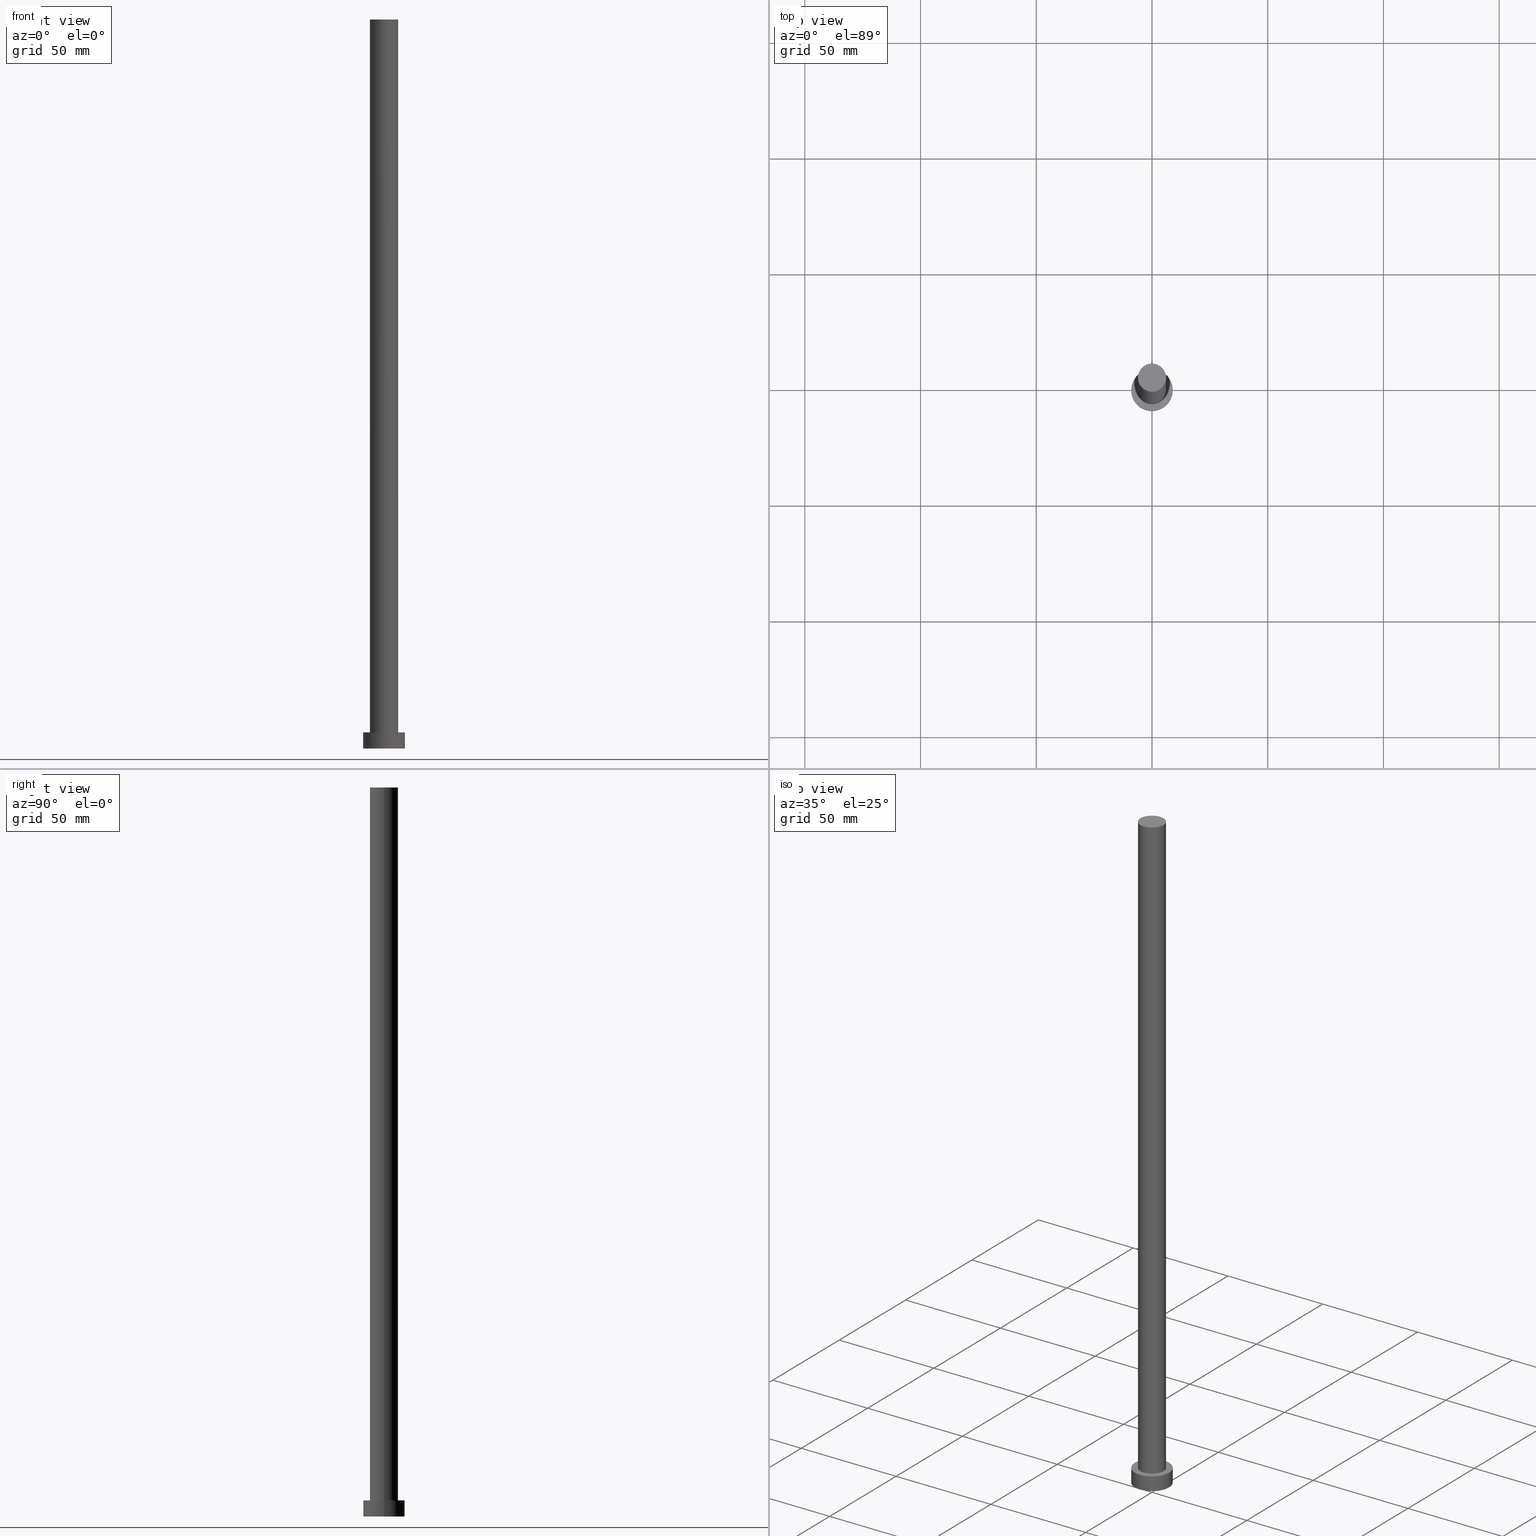
[diagram: canonical four-view strip — front | top / right | iso, engineering-drawing reading convention]
A machine part, canonical four-view strip (front | top / right | iso — engineering-drawing reading convention). The complete STEP part file that produces these views, byte-faithful:
ISO-10303-21;
HEADER;
FILE_DESCRIPTION (( 'STEP AP203' ),
    '1' );
FILE_NAME ('68d6.STEP',
    '2023-02-12T11:02:56',
    ( '' ),
    ( '' ),
    'SwSTEP 2.0',
    'SolidWorks 2019',
    '' );
FILE_SCHEMA (( 'CONFIG_CONTROL_DESIGN' ));
ENDSEC;

DATA;
#1 = AXIS2_PLACEMENT_3D ( 'NONE', #61, #118, #231 ) ;
#2 =( NAMED_UNIT ( * ) PLANE_ANGLE_UNIT ( ) SI_UNIT ( $, .RADIAN. ) );
#3 = APPROVAL_PERSON_ORGANIZATION ( #191, #161, #42 ) ;
#4 = COORDINATED_UNIVERSAL_TIME_OFFSET ( 1, 0, .AHEAD. ) ;
#5 = CARTESIAN_POINT ( 'NONE',  ( 0.000000000000000000, 0.000000000000000000, 315.0000000000000000 ) ) ;
#6 = EDGE_CURVE ( 'NONE', #242, #131, #48, .T. ) ;
#7 = ORGANIZATION ( 'NEUR�EN�', 'NEUR�EN�', '' ) ;
#8 = VERTEX_POINT ( 'NONE', #78 ) ;
#9 = VECTOR ( 'NONE', #104, 1000.000000000000000 ) ;
#10 = EDGE_CURVE ( 'NONE', #8, #110, #115, .T. ) ;
#11 = APPROVAL_ROLE ( '' ) ;
#12 = DIRECTION ( 'NONE',  ( -1.000000000000000000, 0.000000000000000000, 0.000000000000000000 ) ) ;
#13 = ORIENTED_EDGE ( 'NONE', *, *, #85, .T. ) ;
#14 = AXIS2_PLACEMENT_3D ( 'NONE', #16, #65, #80 ) ;
#15 = PERSON_AND_ORGANIZATION ( #126, #7 ) ;
#16 = CARTESIAN_POINT ( 'NONE',  ( 0.000000000000000000, 0.000000000000000000, 0.000000000000000000 ) ) ;
#17 = ORIENTED_EDGE ( 'NONE', *, *, #99, .T. ) ;
#18 = DIRECTION ( 'NONE',  ( -1.000000000000000000, 0.000000000000000000, 0.000000000000000000 ) ) ;
#19 = DIRECTION ( 'NONE',  ( 1.000000000000000000, 0.000000000000000000, 0.000000000000000000 ) ) ;
#20 = CC_DESIGN_DATE_AND_TIME_ASSIGNMENT ( #209, #114, ( #188 ) ) ;
#21 = ORIENTED_EDGE ( 'NONE', *, *, #128, .F. ) ;
#22 = CIRCLE ( 'NONE', #137, 6.099999999999999645 ) ;
#23 = CC_DESIGN_APPROVAL ( #218, ( #188 ) ) ;
#24 = ORIENTED_EDGE ( 'NONE', *, *, #128, .T. ) ;
#25 = CIRCLE ( 'NONE', #204, 6.099999999999999645 ) ;
#26 = CALENDAR_DATE ( 2023, 12, 2 ) ;
#27 = EDGE_CURVE ( 'NONE', #201, #110, #73, .T. ) ;
#28 = CIRCLE ( 'NONE', #182, 9.000000000000000000 ) ;
#29 = DIRECTION ( 'NONE',  ( -0.000000000000000000, -0.000000000000000000, -1.000000000000000000 ) ) ;
#30 = DIRECTION ( 'NONE',  ( -1.000000000000000000, 0.000000000000000000, 0.000000000000000000 ) ) ;
#31 = DIRECTION ( 'NONE',  ( 1.000000000000000000, 0.000000000000000000, 0.000000000000000000 ) ) ;
#32 = DIRECTION ( 'NONE',  ( -0.000000000000000000, -0.000000000000000000, -1.000000000000000000 ) ) ;
#33 = DIRECTION ( 'NONE',  ( 0.000000000000000000, 0.000000000000000000, 1.000000000000000000 ) ) ;
#34 = DIRECTION ( 'NONE',  ( -0.000000000000000000, -0.000000000000000000, -1.000000000000000000 ) ) ;
#35 = ORIENTED_EDGE ( 'NONE', *, *, #62, .F. ) ;
#36 = CYLINDRICAL_SURFACE ( 'NONE', #212, 9.000000000000000000 ) ;
#37 = FACE_OUTER_BOUND ( 'NONE', #53, .T. ) ;
#38 = EDGE_LOOP ( 'NONE', ( #190, #21, #123, #145 ) ) ;
#39 = CARTESIAN_POINT ( 'NONE',  ( 0.000000000000000000, 0.000000000000000000, 7.000000000000000000 ) ) ;
#40 = CARTESIAN_POINT ( 'NONE',  ( 0.000000000000000000, 0.000000000000000000, 7.000000000000000000 ) ) ;
#41 = DIRECTION ( 'NONE',  ( 1.000000000000000000, 0.000000000000000000, -0.000000000000000000 ) ) ;
#42 = APPROVAL_ROLE ( '' ) ;
#43 = APPROVAL ( #147, 'NEUR�EN�' ) ;
#44 = PERSON_AND_ORGANIZATION ( #126, #7 ) ;
#45 = PERSON_AND_ORGANIZATION_ROLE ( 'design_owner' ) ;
#46 = ADVANCED_BREP_SHAPE_REPRESENTATION ( '68d6', ( #120, #14 ), #240 ) ;
#47 = PRODUCT_RELATED_PRODUCT_CATEGORY ( 'detail', '', ( #175 ) ) ;
#48 = LINE ( 'NONE', #103, #234 ) ;
#49 = CARTESIAN_POINT ( 'NONE',  ( 0.000000000000000000, 0.000000000000000000, 315.0000000000000000 ) ) ;
#50 = DIRECTION ( 'NONE',  ( -1.000000000000000000, 0.000000000000000000, 0.000000000000000000 ) ) ;
#51 = CARTESIAN_POINT ( 'NONE',  ( 9.000000000000000000, 1.102182119232617714E-15, 0.000000000000000000 ) ) ;
#52 = DATE_AND_TIME ( #203, #192 ) ;
#53 = EDGE_LOOP ( 'NONE', ( #24, #67 ) ) ;
#54 = PLANE ( 'NONE',  #94 ) ;
#55 = EDGE_CURVE ( 'NONE', #74, #201, #22, .T. ) ;
#56 = VERTEX_POINT ( 'NONE', #156 ) ;
#57 = COORDINATED_UNIVERSAL_TIME_OFFSET ( 1, 0, .AHEAD. ) ;
#58 = APPROVAL_DATE_TIME ( #196, #161 ) ;
#59 = ADVANCED_FACE ( 'NONE', ( #168 ), #36, .T. ) ;
#60 = DIRECTION ( 'NONE',  ( 0.000000000000000000, 0.000000000000000000, 1.000000000000000000 ) ) ;
#61 = CARTESIAN_POINT ( 'NONE',  ( 0.000000000000000000, 0.000000000000000000, 7.000000000000000000 ) ) ;
#62 = EDGE_CURVE ( 'NONE', #242, #56, #146, .T. ) ;
#63 = EDGE_LOOP ( 'NONE', ( #90, #254 ) ) ;
#64 = FACE_OUTER_BOUND ( 'NONE', #166, .T. ) ;
#65 = DIRECTION ( 'NONE',  ( 0.000000000000000000, 0.000000000000000000, 1.000000000000000000 ) ) ;
#66 = DIRECTION ( 'NONE',  ( -0.000000000000000000, -0.000000000000000000, -1.000000000000000000 ) ) ;
#67 = ORIENTED_EDGE ( 'NONE', *, *, #55, .T. ) ;
#68 = SHAPE_DEFINITION_REPRESENTATION ( #121, #46 ) ;
#69 = APPLICATION_CONTEXT ( 'configuration controlled 3d designs of mechanical parts and assemblies' ) ;
#70 = FACE_OUTER_BOUND ( 'NONE', #63, .T. ) ;
#71 = ORIENTED_EDGE ( 'NONE', *, *, #193, .T. ) ;
#72 = AXIS2_PLACEMENT_3D ( 'NONE', #86, #109, #249 ) ;
#73 = LINE ( 'NONE', #134, #172 ) ;
#74 = VERTEX_POINT ( 'NONE', #113 ) ;
#75 = PERSON_AND_ORGANIZATION ( #126, #7 ) ;
#76 = AXIS2_PLACEMENT_3D ( 'NONE', #244, #32, #30 ) ;
#77 = CC_DESIGN_SECURITY_CLASSIFICATION ( #97, ( #150 ) ) ;
#78 = CARTESIAN_POINT ( 'NONE',  ( 6.099999999999999645, 7.470345474798854293E-16, 7.000000000000000000 ) ) ;
#79 = CC_DESIGN_PERSON_AND_ORGANIZATION_ASSIGNMENT ( #44, #92, ( #150 ) ) ;
#80 = DIRECTION ( 'NONE',  ( 1.000000000000000000, 0.000000000000000000, 0.000000000000000000 ) ) ;
#81 = AXIS2_PLACEMENT_3D ( 'NONE', #87, #60, #142 ) ;
#82 = COORDINATED_UNIVERSAL_TIME_OFFSET ( 1, 0, .AHEAD. ) ;
#83 = DIRECTION ( 'NONE',  ( 0.000000000000000000, 0.000000000000000000, 1.000000000000000000 ) ) ;
#84 = ORIENTED_EDGE ( 'NONE', *, *, #27, .F. ) ;
#85 = EDGE_CURVE ( 'NONE', #131, #155, #28, .T. ) ;
#86 = CARTESIAN_POINT ( 'NONE',  ( 0.000000000000000000, 0.000000000000000000, 315.0000000000000000 ) ) ;
#87 = CARTESIAN_POINT ( 'NONE',  ( 0.000000000000000000, 0.000000000000000000, 7.000000000000000000 ) ) ;
#88 = DIRECTION ( 'NONE',  ( 0.000000000000000000, 0.000000000000000000, 1.000000000000000000 ) ) ;
#89 = DIRECTION ( 'NONE',  ( 0.000000000000000000, 0.000000000000000000, 1.000000000000000000 ) ) ;
#90 = ORIENTED_EDGE ( 'NONE', *, *, #239, .F. ) ;
#91 = APPLICATION_PROTOCOL_DEFINITION ( 'international standard', 'config_control_design', 1994, #93 ) ;
#92 = PERSON_AND_ORGANIZATION_ROLE ( 'creator' ) ;
#93 = APPLICATION_CONTEXT ( 'configuration controlled 3d designs of mechanical parts and assemblies' ) ;
#94 = AXIS2_PLACEMENT_3D ( 'NONE', #108, #154, #207 ) ;
#95 = CARTESIAN_POINT ( 'NONE',  ( -6.099999999999999645, 0.000000000000000000, 7.000000000000000000 ) ) ;
#96 = CC_DESIGN_APPROVAL ( #161, ( #150 ) ) ;
#97 = SECURITY_CLASSIFICATION ( '', '', #143 ) ;
#98 = COORDINATED_UNIVERSAL_TIME_OFFSET ( 1, 0, .AHEAD. ) ;
#99 = EDGE_CURVE ( 'NONE', #56, #242, #164, .T. ) ;
#100 = DIRECTION ( 'NONE',  ( 0.000000000000000000, 0.000000000000000000, 1.000000000000000000 ) ) ;
#101 = ADVANCED_FACE ( 'NONE', ( #173, #232 ), #138, .T. ) ;
#102 = ORIENTED_EDGE ( 'NONE', *, *, #185, .F. ) ;
#103 = CARTESIAN_POINT ( 'NONE',  ( 9.000000000000000000, 1.102182119232617714E-15, 7.000000000000000000 ) ) ;
#104 = DIRECTION ( 'NONE',  ( -0.000000000000000000, -0.000000000000000000, -1.000000000000000000 ) ) ;
#105 = CIRCLE ( 'NONE', #200, 6.099999999999999645 ) ;
#106 = COORDINATED_UNIVERSAL_TIME_OFFSET ( 1, 0, .AHEAD. ) ;
#107 = DATE_TIME_ROLE ( 'classification_date' ) ;
#108 = CARTESIAN_POINT ( 'NONE',  ( 0.000000000000000000, 0.000000000000000000, 0.000000000000000000 ) ) ;
#109 = DIRECTION ( 'NONE',  ( 0.000000000000000000, 0.000000000000000000, 1.000000000000000000 ) ) ;
#110 = VERTEX_POINT ( 'NONE', #95 ) ;
#111 = ORIENTED_EDGE ( 'NONE', *, *, #185, .T. ) ;
#112 = CARTESIAN_POINT ( 'NONE',  ( 0.000000000000000000, 0.000000000000000000, 0.000000000000000000 ) ) ;
#113 = CARTESIAN_POINT ( 'NONE',  ( 6.099999999999999645, 7.470345474798854293E-16, 315.0000000000000000 ) ) ;
#114 = DATE_TIME_ROLE ( 'creation_date' ) ;
#115 = CIRCLE ( 'NONE', #1, 6.099999999999999645 ) ;
#116 = VECTOR ( 'NONE', #34, 1000.000000000000000 ) ;
#117 = CALENDAR_DATE ( 2023, 12, 2 ) ;
#118 = DIRECTION ( 'NONE',  ( 0.000000000000000000, 0.000000000000000000, 1.000000000000000000 ) ) ;
#119 = DATE_AND_TIME ( #26, #125 ) ;
#120 = MANIFOLD_SOLID_BREP ( 'P�idat vysunut�m3', #214 ) ;
#121 = PRODUCT_DEFINITION_SHAPE ( 'NONE', 'NONE',  #188 ) ;
#122 = AXIS2_PLACEMENT_3D ( 'NONE', #49, #184, #50 ) ;
#123 = ORIENTED_EDGE ( 'NONE', *, *, #27, .T. ) ;
#124 = DATE_AND_TIME ( #132, #202 ) ;
#125 = LOCAL_TIME ( 12, 2, 56.00000000000000000, #4 ) ;
#126 = PERSON ( 'NEUR�EN�', 'NEUR�EN�', 'NEUR�EN�', ('NEUR�EN�'), ('NEUR�EN�'), ('NEUR�EN�') ) ;
#127 = LINE ( 'NONE', #252, #116 ) ;
#128 = EDGE_CURVE ( 'NONE', #201, #74, #25, .T. ) ;
#129 = PERSON_AND_ORGANIZATION ( #126, #7 ) ;
#130 = AXIS2_PLACEMENT_3D ( 'NONE', #40, #88, #237 ) ;
#131 = VERTEX_POINT ( 'NONE', #51 ) ;
#132 = CALENDAR_DATE ( 2023, 12, 2 ) ;
#133 = CC_DESIGN_PERSON_AND_ORGANIZATION_ASSIGNMENT ( #129, #225, ( #97 ) ) ;
#134 = CARTESIAN_POINT ( 'NONE',  ( -6.099999999999999645, 0.000000000000000000, 315.0000000000000000 ) ) ;
#135 = ORIENTED_EDGE ( 'NONE', *, *, #10, .F. ) ;
#136 = DIRECTION ( 'NONE',  ( -0.000000000000000000, -0.000000000000000000, -1.000000000000000000 ) ) ;
#137 = AXIS2_PLACEMENT_3D ( 'NONE', #213, #33, #251 ) ;
#138 = PLANE ( 'NONE',  #179 ) ;
#139 = CALENDAR_DATE ( 2023, 12, 2 ) ;
#140 = DIRECTION ( 'NONE',  ( -0.000000000000000000, -0.000000000000000000, -1.000000000000000000 ) ) ;
#141 = PERSON_AND_ORGANIZATION ( #126, #7 ) ;
#142 = DIRECTION ( 'NONE',  ( 1.000000000000000000, 0.000000000000000000, 0.000000000000000000 ) ) ;
#143 = SECURITY_CLASSIFICATION_LEVEL ( 'unclassified' ) ;
#144 = ADVANCED_FACE ( 'NONE', ( #221 ), #183, .T. ) ;
#145 = ORIENTED_EDGE ( 'NONE', *, *, #241, .T. ) ;
#146 = CIRCLE ( 'NONE', #81, 9.000000000000000000 ) ;
#147 = APPROVAL_STATUS ( 'not_yet_approved' ) ;
#148 = CYLINDRICAL_SURFACE ( 'NONE', #76, 9.000000000000000000 ) ;
#149 = DIRECTION ( 'NONE',  ( 1.000000000000000000, 0.000000000000000000, 0.000000000000000000 ) ) ;
#150 = PRODUCT_DEFINITION_FORMATION_WITH_SPECIFIED_SOURCE ( 'LIBOVOLN�', '', #175, .NOT_KNOWN. ) ;
#151 = PLANE ( 'NONE',  #72 ) ;
#152 = ORIENTED_EDGE ( 'NONE', *, *, #62, .T. ) ;
#153 = APPROVAL_DATE_TIME ( #119, #218 ) ;
#154 = DIRECTION ( 'NONE',  ( 0.000000000000000000, 0.000000000000000000, 1.000000000000000000 ) ) ;
#155 = VERTEX_POINT ( 'NONE', #162 ) ;
#156 = CARTESIAN_POINT ( 'NONE',  ( -9.000000000000000000, 0.000000000000000000, 7.000000000000000000 ) ) ;
#157 = PERSON_AND_ORGANIZATION ( #126, #7 ) ;
#158 = CARTESIAN_POINT ( 'NONE',  ( 0.000000000000000000, 0.000000000000000000, 0.000000000000000000 ) ) ;
#159 = PERSON_AND_ORGANIZATION ( #126, #7 ) ;
#160 =( LENGTH_UNIT ( ) NAMED_UNIT ( * ) SI_UNIT ( .MILLI., .METRE. ) );
#161 = APPROVAL ( #233, 'NEUR�EN�' ) ;
#162 = CARTESIAN_POINT ( 'NONE',  ( -9.000000000000000000, 0.000000000000000000, 0.000000000000000000 ) ) ;
#163 = ADVANCED_FACE ( 'NONE', ( #64 ), #148, .T. ) ;
#164 = CIRCLE ( 'NONE', #130, 9.000000000000000000 ) ;
#165 = AXIS2_PLACEMENT_3D ( 'NONE', #112, #247, #149 ) ;
#166 = EDGE_LOOP ( 'NONE', ( #35, #216, #13, #102 ) ) ;
#167 = APPROVAL_PERSON_ORGANIZATION ( #15, #43, #11 ) ;
#168 = FACE_OUTER_BOUND ( 'NONE', #253, .T. ) ;
#169 = CYLINDRICAL_SURFACE ( 'NONE', #224, 6.099999999999999645 ) ;
#170 = ORIENTED_EDGE ( 'NONE', *, *, #239, .T. ) ;
#171 = MECHANICAL_CONTEXT ( 'NONE', #69, 'mechanical' ) ;
#172 = VECTOR ( 'NONE', #140, 1000.000000000000000 ) ;
#173 = FACE_BOUND ( 'NONE', #227, .T. ) ;
#174 = APPROVAL_STATUS ( 'not_yet_approved' ) ;
#175 = PRODUCT ( '68d6', '68d6', '', ( #171 ) ) ;
#176 = EDGE_LOOP ( 'NONE', ( #181, #71, #199, #84 ) ) ;
#177 = DESIGN_CONTEXT ( 'detailed design', #93, 'design' ) ;
#178 = CC_DESIGN_DATE_AND_TIME_ASSIGNMENT ( #52, #107, ( #97 ) ) ;
#179 = AXIS2_PLACEMENT_3D ( 'NONE', #195, #83, #41 ) ;
#180 = CIRCLE ( 'NONE', #165, 9.000000000000000000 ) ;
#181 = ORIENTED_EDGE ( 'NONE', *, *, #55, .F. ) ;
#182 = AXIS2_PLACEMENT_3D ( 'NONE', #158, #187, #19 ) ;
#183 = CYLINDRICAL_SURFACE ( 'NONE', #122, 6.099999999999999645 ) ;
#184 = DIRECTION ( 'NONE',  ( -0.000000000000000000, -0.000000000000000000, -1.000000000000000000 ) ) ;
#185 = EDGE_CURVE ( 'NONE', #56, #155, #223, .T. ) ;
#186 = APPROVAL_PERSON_ORGANIZATION ( #157, #218, #255 ) ;
#187 = DIRECTION ( 'NONE',  ( 0.000000000000000000, 0.000000000000000000, 1.000000000000000000 ) ) ;
#188 = PRODUCT_DEFINITION ( 'NEZN�M�', '', #150, #177 ) ;
#189 = CARTESIAN_POINT ( 'NONE',  ( 0.000000000000000000, 0.000000000000000000, 7.000000000000000000 ) ) ;
#190 = ORIENTED_EDGE ( 'NONE', *, *, #193, .F. ) ;
#191 = PERSON_AND_ORGANIZATION ( #126, #7 ) ;
#192 = LOCAL_TIME ( 12, 2, 56.00000000000000000, #106 ) ;
#193 = EDGE_CURVE ( 'NONE', #74, #8, #127, .T. ) ;
#194 = ORIENTED_EDGE ( 'NONE', *, *, #99, .F. ) ;
#195 = CARTESIAN_POINT ( 'NONE',  ( 0.000000000000000000, 0.000000000000000000, 7.000000000000000000 ) ) ;
#196 = DATE_AND_TIME ( #117, #220 ) ;
#197 = PERSON_AND_ORGANIZATION_ROLE ( 'design_supplier' ) ;
#198 = ADVANCED_FACE ( 'NONE', ( #37 ), #151, .T. ) ;
#199 = ORIENTED_EDGE ( 'NONE', *, *, #10, .T. ) ;
#200 = AXIS2_PLACEMENT_3D ( 'NONE', #189, #89, #228 ) ;
#201 = VERTEX_POINT ( 'NONE', #246 ) ;
#202 = LOCAL_TIME ( 12, 2, 56.00000000000000000, #82 ) ;
#203 = CALENDAR_DATE ( 2023, 12, 2 ) ;
#204 = AXIS2_PLACEMENT_3D ( 'NONE', #5, #100, #31 ) ;
#205 = FACE_OUTER_BOUND ( 'NONE', #176, .T. ) ;
#206 = ADVANCED_FACE ( 'NONE', ( #205 ), #169, .T. ) ;
#207 = DIRECTION ( 'NONE',  ( 1.000000000000000000, 0.000000000000000000, -0.000000000000000000 ) ) ;
#208 = UNCERTAINTY_MEASURE_WITH_UNIT (LENGTH_MEASURE( 1.000000000000000082E-05 ), #160, 'distance_accuracy_value', 'NONE');
#209 = DATE_AND_TIME ( #139, #219 ) ;
#210 = CARTESIAN_POINT ( 'NONE',  ( 0.000000000000000000, 0.000000000000000000, 315.0000000000000000 ) ) ;
#211 = PERSON_AND_ORGANIZATION_ROLE ( 'creator' ) ;
#212 = AXIS2_PLACEMENT_3D ( 'NONE', #39, #136, #18 ) ;
#213 = CARTESIAN_POINT ( 'NONE',  ( 0.000000000000000000, 0.000000000000000000, 315.0000000000000000 ) ) ;
#214 = CLOSED_SHELL ( 'NONE', ( #206, #163, #59, #101, #229, #144, #198 ) ) ;
#215 = CC_DESIGN_PERSON_AND_ORGANIZATION_ASSIGNMENT ( #159, #211, ( #188 ) ) ;
#216 = ORIENTED_EDGE ( 'NONE', *, *, #6, .T. ) ;
#217 = CARTESIAN_POINT ( 'NONE',  ( -9.000000000000000000, 0.000000000000000000, 7.000000000000000000 ) ) ;
#218 = APPROVAL ( #174, 'NEUR�EN�' ) ;
#219 = LOCAL_TIME ( 12, 2, 56.00000000000000000, #98 ) ;
#220 = LOCAL_TIME ( 12, 2, 56.00000000000000000, #57 ) ;
#221 = FACE_OUTER_BOUND ( 'NONE', #38, .T. ) ;
#222 = CC_DESIGN_PERSON_AND_ORGANIZATION_ASSIGNMENT ( #141, #197, ( #150 ) ) ;
#223 = LINE ( 'NONE', #217, #9 ) ;
#224 = AXIS2_PLACEMENT_3D ( 'NONE', #210, #66, #12 ) ;
#225 = PERSON_AND_ORGANIZATION_ROLE ( 'classification_officer' ) ;
#226 = CC_DESIGN_PERSON_AND_ORGANIZATION_ASSIGNMENT ( #75, #45, ( #175 ) ) ;
#227 = EDGE_LOOP ( 'NONE', ( #245, #135 ) ) ;
#228 = DIRECTION ( 'NONE',  ( 1.000000000000000000, 0.000000000000000000, 0.000000000000000000 ) ) ;
#229 = ADVANCED_FACE ( 'NONE', ( #70 ), #54, .F. ) ;
#230 = EDGE_LOOP ( 'NONE', ( #17, #152 ) ) ;
#231 = DIRECTION ( 'NONE',  ( 1.000000000000000000, 0.000000000000000000, 0.000000000000000000 ) ) ;
#232 = FACE_OUTER_BOUND ( 'NONE', #230, .T. ) ;
#233 = APPROVAL_STATUS ( 'not_yet_approved' ) ;
#234 = VECTOR ( 'NONE', #29, 1000.000000000000000 ) ;
#235 = CARTESIAN_POINT ( 'NONE',  ( 9.000000000000000000, 1.102182119232617714E-15, 7.000000000000000000 ) ) ;
#236 = CC_DESIGN_APPROVAL ( #43, ( #97 ) ) ;
#237 = DIRECTION ( 'NONE',  ( 1.000000000000000000, 0.000000000000000000, 0.000000000000000000 ) ) ;
#238 =( NAMED_UNIT ( * ) SI_UNIT ( $, .STERADIAN. ) SOLID_ANGLE_UNIT ( ) );
#239 = EDGE_CURVE ( 'NONE', #155, #131, #180, .T. ) ;
#240 =( GEOMETRIC_REPRESENTATION_CONTEXT ( 3 ) GLOBAL_UNCERTAINTY_ASSIGNED_CONTEXT ( ( #208 ) ) GLOBAL_UNIT_ASSIGNED_CONTEXT ( ( #160, #2, #238 ) ) REPRESENTATION_CONTEXT ( 'NONE', 'WORKASPACE' ) );
#241 = EDGE_CURVE ( 'NONE', #110, #8, #105, .T. ) ;
#242 = VERTEX_POINT ( 'NONE', #235 ) ;
#243 = APPLICATION_PROTOCOL_DEFINITION ( 'international standard', 'config_control_design', 1994, #69 ) ;
#244 = CARTESIAN_POINT ( 'NONE',  ( 0.000000000000000000, 0.000000000000000000, 7.000000000000000000 ) ) ;
#245 = ORIENTED_EDGE ( 'NONE', *, *, #241, .F. ) ;
#246 = CARTESIAN_POINT ( 'NONE',  ( -6.099999999999999645, 0.000000000000000000, 315.0000000000000000 ) ) ;
#247 = DIRECTION ( 'NONE',  ( 0.000000000000000000, 0.000000000000000000, 1.000000000000000000 ) ) ;
#248 = APPROVAL_DATE_TIME ( #124, #43 ) ;
#249 = DIRECTION ( 'NONE',  ( 1.000000000000000000, 0.000000000000000000, -0.000000000000000000 ) ) ;
#250 = ORIENTED_EDGE ( 'NONE', *, *, #6, .F. ) ;
#251 = DIRECTION ( 'NONE',  ( 1.000000000000000000, 0.000000000000000000, 0.000000000000000000 ) ) ;
#252 = CARTESIAN_POINT ( 'NONE',  ( 6.099999999999999645, 7.470345474798854293E-16, 315.0000000000000000 ) ) ;
#253 = EDGE_LOOP ( 'NONE', ( #250, #194, #111, #170 ) ) ;
#254 = ORIENTED_EDGE ( 'NONE', *, *, #85, .F. ) ;
#255 = APPROVAL_ROLE ( '' ) ;
ENDSEC;
END-ISO-10303-21;
